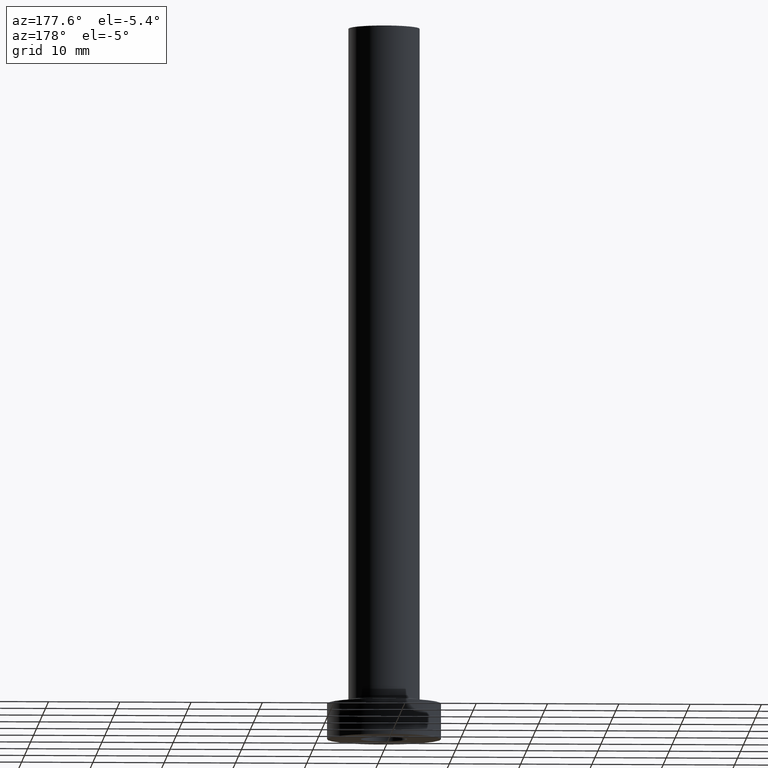
[diagram: clean part render]
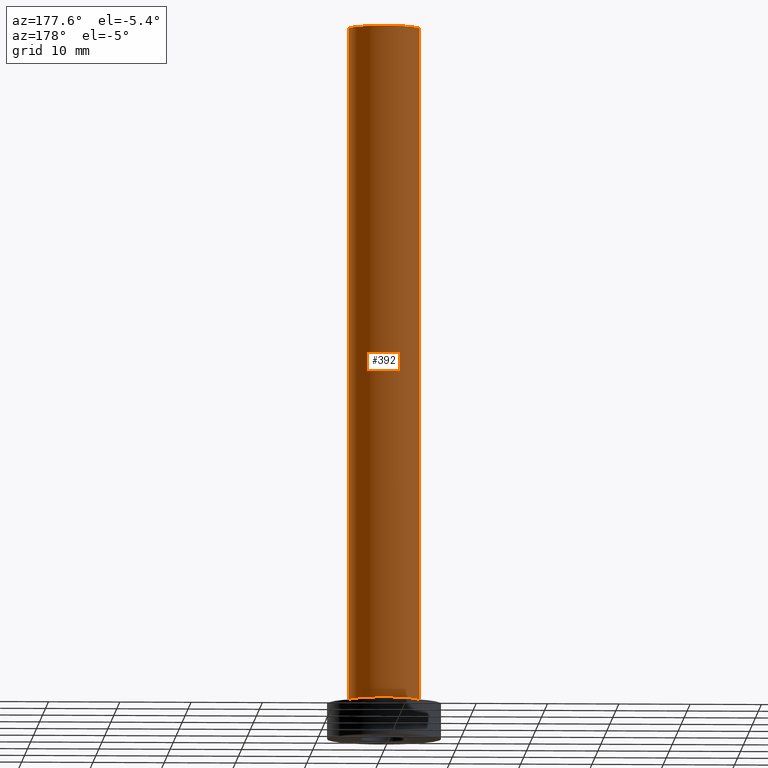
[diagram: same view with one face highlighted and labeled with its STEP entity id]
A machine part, auxiliary view. The second image highlights one B-rep face of the part: STEP entity #392.
In plain terms, the highlighted cylindrical surface (edge-blend (fillet) strip) has radius 5 mm, axis along (-0, -0, -1).
Its self-contained STEP definition (entity closure, byte-faithful):
#16 = CARTESIAN_POINT ( 'NONE',  ( -5.000000000000000000, 0.000000000000000000, 100.0000000000000000 ) ) ;
#24 = EDGE_CURVE ( 'NONE', #207, #406, #270, .T. ) ;
#25 = ORIENTED_EDGE ( 'NONE', *, *, #106, .F. ) ;
#37 = EDGE_CURVE ( 'NONE', #170, #433, #129, .T. ) ;
#39 = VECTOR ( 'NONE', #199, 1000.000000000000000 ) ;
#68 = DIRECTION ( 'NONE',  ( 0.000000000000000000, 0.000000000000000000, 1.000000000000000000 ) ) ;
#70 = CARTESIAN_POINT ( 'NONE',  ( 0.000000000000000000, 0.000000000000000000, 100.0000000000000000 ) ) ;
#74 = EDGE_LOOP ( 'NONE', ( #25, #117, #184, #181 ) ) ;
#80 = CARTESIAN_POINT ( 'NONE',  ( 5.000000000000000000, 6.123233995736766282E-16, 100.0000000000000000 ) ) ;
#88 = CARTESIAN_POINT ( 'NONE',  ( -5.000000000000000000, 0.000000000000000000, 100.0000000000000000 ) ) ;
#106 = EDGE_CURVE ( 'NONE', #207, #170, #235, .T. ) ;
#117 = ORIENTED_EDGE ( 'NONE', *, *, #24, .T. ) ;
#124 = DIRECTION ( 'NONE',  ( 1.000000000000000000, 0.000000000000000000, 0.000000000000000000 ) ) ;
#129 = LINE ( 'NONE', #88, #39 ) ;
#151 = CIRCLE ( 'NONE', #374, 5.000000000000000000 ) ;
#154 = DIRECTION ( 'NONE',  ( 0.000000000000000000, 0.000000000000000000, 1.000000000000000000 ) ) ;
#170 = VERTEX_POINT ( 'NONE', #16 ) ;
#181 = ORIENTED_EDGE ( 'NONE', *, *, #37, .F. ) ;
#184 = ORIENTED_EDGE ( 'NONE', *, *, #232, .T. ) ;
#199 = DIRECTION ( 'NONE',  ( -0.000000000000000000, -0.000000000000000000, -1.000000000000000000 ) ) ;
#207 = VERTEX_POINT ( 'NONE', #80 ) ;
#212 = DIRECTION ( 'NONE',  ( 1.000000000000000000, 0.000000000000000000, 0.000000000000000000 ) ) ;
#213 = CARTESIAN_POINT ( 'NONE',  ( 5.000000000000000000, 6.123233995736766282E-16, 5.500000000000005329 ) ) ;
#225 = VECTOR ( 'NONE', #236, 1000.000000000000000 ) ;
#232 = EDGE_CURVE ( 'NONE', #406, #433, #151, .T. ) ;
#235 = CIRCLE ( 'NONE', #457, 5.000000000000000000 ) ;
#236 = DIRECTION ( 'NONE',  ( -0.000000000000000000, -0.000000000000000000, -1.000000000000000000 ) ) ;
#250 = DIRECTION ( 'NONE',  ( -0.000000000000000000, -0.000000000000000000, -1.000000000000000000 ) ) ;
#253 = DIRECTION ( 'NONE',  ( -1.000000000000000000, 0.000000000000000000, 0.000000000000000000 ) ) ;
#270 = LINE ( 'NONE', #377, #225 ) ;
#290 = FACE_OUTER_BOUND ( 'NONE', #74, .T. ) ;
#305 = CARTESIAN_POINT ( 'NONE',  ( 0.000000000000000000, 0.000000000000000000, 100.0000000000000000 ) ) ;
#325 = CARTESIAN_POINT ( 'NONE',  ( 0.000000000000000000, 0.000000000000000000, 5.500000000000005329 ) ) ;
#374 = AXIS2_PLACEMENT_3D ( 'NONE', #325, #68, #212 ) ;
#375 = AXIS2_PLACEMENT_3D ( 'NONE', #70, #250, #253 ) ;
#377 = CARTESIAN_POINT ( 'NONE',  ( 5.000000000000000000, 6.123233995736766282E-16, 100.0000000000000000 ) ) ;
#392 = ADVANCED_FACE ( 'NONE', ( #290 ), #403, .T. ) ;
#403 = CYLINDRICAL_SURFACE ( 'NONE', #375, 5.000000000000000000 ) ;
#406 = VERTEX_POINT ( 'NONE', #213 ) ;
#433 = VERTEX_POINT ( 'NONE', #459 ) ;
#457 = AXIS2_PLACEMENT_3D ( 'NONE', #305, #154, #124 ) ;
#459 = CARTESIAN_POINT ( 'NONE',  ( -5.000000000000000000, 0.000000000000000000, 5.500000000000005329 ) ) ;